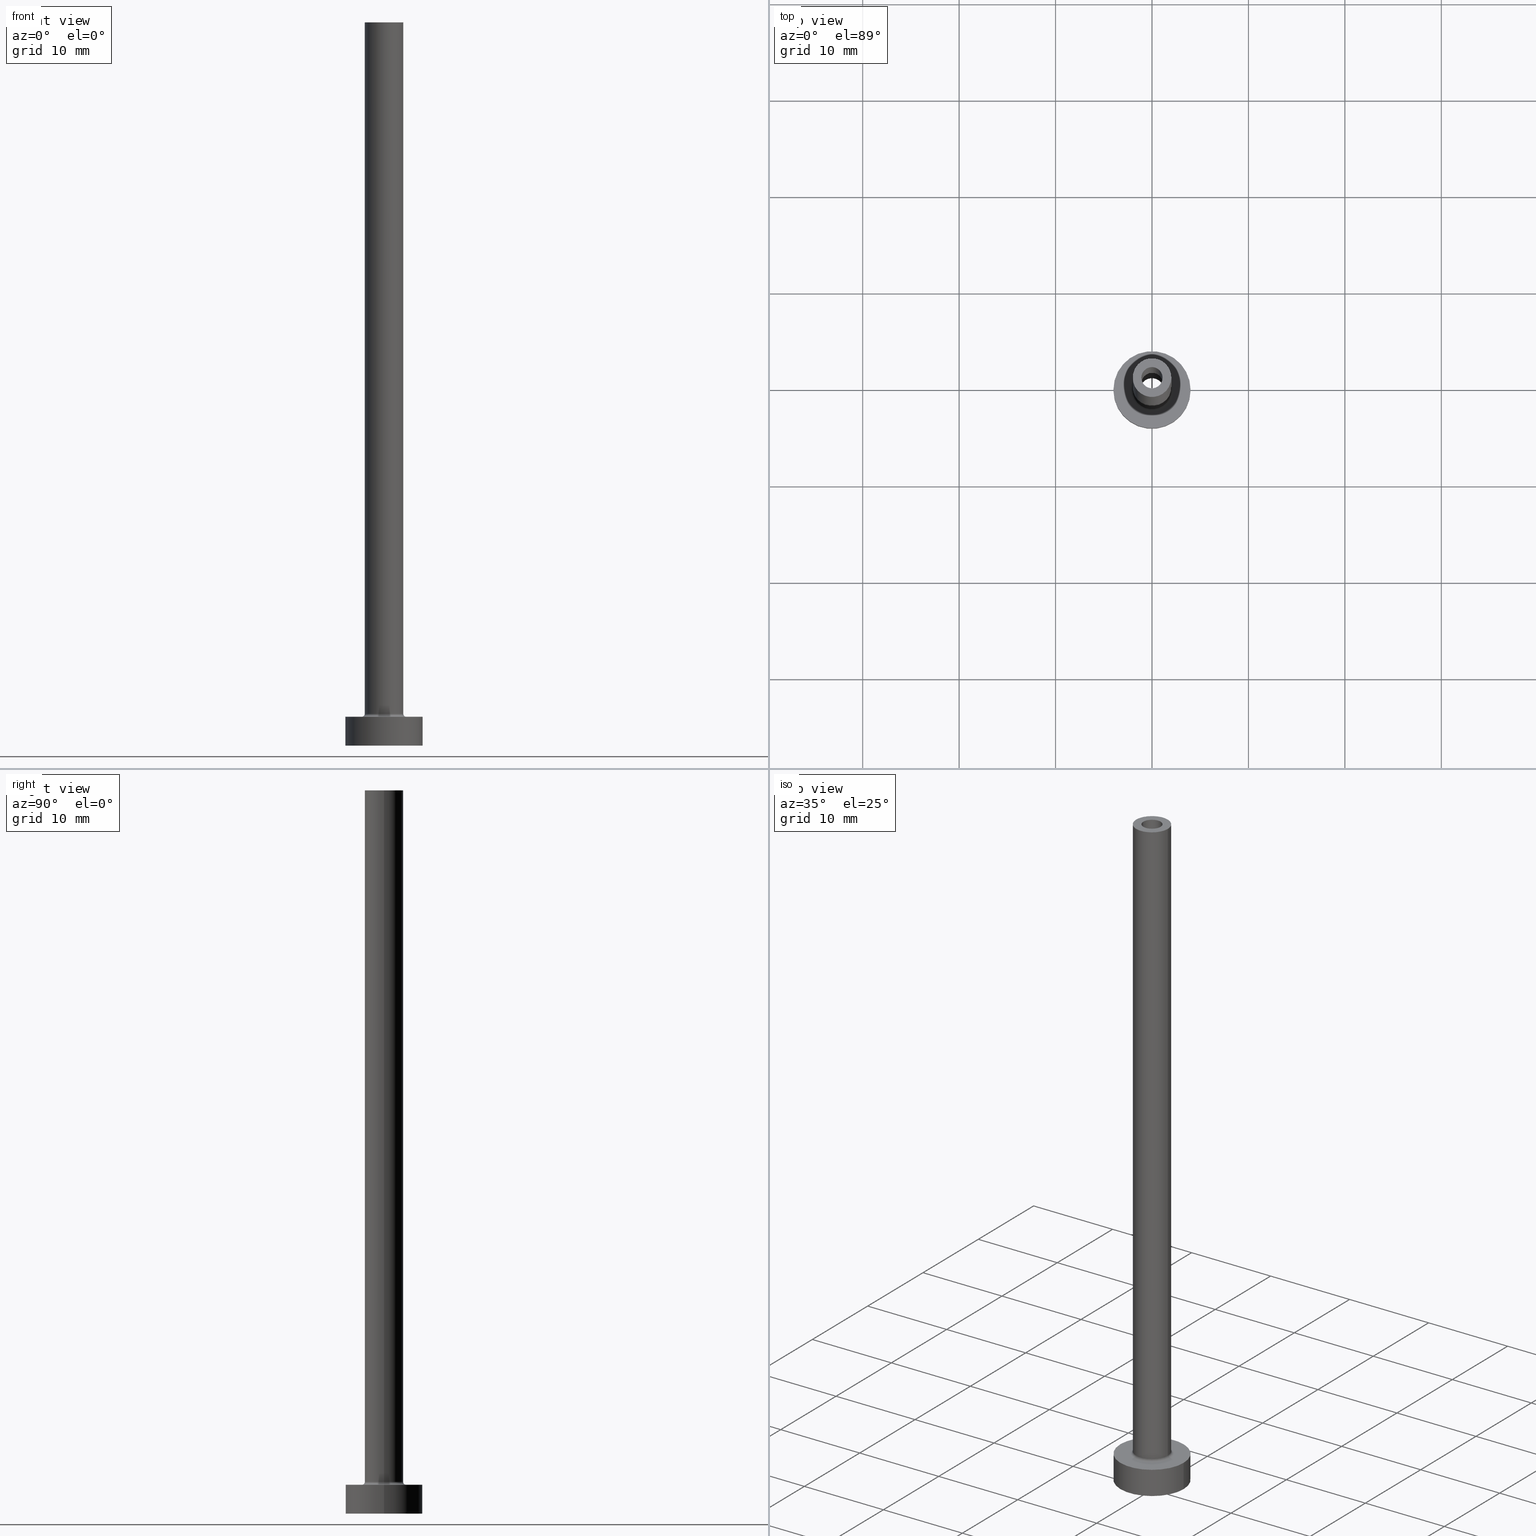
[diagram: canonical four-view strip — front | top / right | iso, engineering-drawing reading convention]
A machine part, canonical four-view strip (front | top / right | iso — engineering-drawing reading convention). The complete STEP part file that produces these views, byte-faithful:
ISO-10303-21;
HEADER;
FILE_DESCRIPTION (( 'STEP AP203' ),
    '1' );
FILE_NAME ('a706.STEP',
    '2023-02-13T12:50:32',
    ( '' ),
    ( '' ),
    'SwSTEP 2.0',
    'SolidWorks 2019',
    '' );
FILE_SCHEMA (( 'CONFIG_CONTROL_DESIGN' ));
ENDSEC;

DATA;
#1 = AXIS2_PLACEMENT_3D ( 'NONE', #374, #343, #160 ) ;
#2 = CYLINDRICAL_SURFACE ( 'NONE', #361, 1.100000000000000089 ) ;
#3 = LINE ( 'NONE', #83, #66 ) ;
#4 = FACE_OUTER_BOUND ( 'NONE', #230, .T. ) ;
#5 = PRODUCT_RELATED_PRODUCT_CATEGORY ( 'detail', '', ( #359 ) ) ;
#6 = DIRECTION ( 'NONE',  ( -0.000000000000000000, -0.000000000000000000, -1.000000000000000000 ) ) ;
#7 = FACE_OUTER_BOUND ( 'NONE', #175, .T. ) ;
#8 = AXIS2_PLACEMENT_3D ( 'NONE', #304, #440, #115 ) ;
#9 = APPROVAL_ROLE ( '' ) ;
#10 = ORIENTED_EDGE ( 'NONE', *, *, #103, .F. ) ;
#11 = DIRECTION ( 'NONE',  ( 0.000000000000000000, 0.000000000000000000, 1.000000000000000000 ) ) ;
#12 = AXIS2_PLACEMENT_3D ( 'NONE', #85, #60, #19 ) ;
#13 = VECTOR ( 'NONE', #367, 1000.000000000000000 ) ;
#14 = CARTESIAN_POINT ( 'NONE',  ( 0.000000000000000000, 0.000000000000000000, 3.299999999999997158 ) ) ;
#15 = COORDINATED_UNIVERSAL_TIME_OFFSET ( 1, 0, .AHEAD. ) ;
#16 = ORIENTED_EDGE ( 'NONE', *, *, #258, .T. ) ;
#17 = DIRECTION ( 'NONE',  ( 0.000000000000000000, 0.000000000000000000, 1.000000000000000000 ) ) ;
#18 = DIRECTION ( 'NONE',  ( 0.000000000000000000, 0.000000000000000000, 1.000000000000000000 ) ) ;
#19 = DIRECTION ( 'NONE',  ( 1.000000000000000000, 0.000000000000000000, 0.000000000000000000 ) ) ;
#20 = CIRCLE ( 'NONE', #101, 2.299999999999999822 ) ;
#21 = FACE_OUTER_BOUND ( 'NONE', #418, .T. ) ;
#22 = VERTEX_POINT ( 'NONE', #294 ) ;
#23 = FACE_BOUND ( 'NONE', #350, .T. ) ;
#24 = VERTEX_POINT ( 'NONE', #461 ) ;
#25 = EDGE_CURVE ( 'NONE', #134, #394, #147, .T. ) ;
#26 = VERTEX_POINT ( 'NONE', #72 ) ;
#27 = TOROIDAL_SURFACE ( 'NONE', #269, 2.299999999999999822, 0.2999999999999999889 ) ;
#28 = EDGE_CURVE ( 'NONE', #446, #59, #432, .T. ) ;
#29 = AXIS2_PLACEMENT_3D ( 'NONE', #426, #395, #358 ) ;
#30 = EDGE_CURVE ( 'NONE', #24, #408, #202, .T. ) ;
#31 = CIRCLE ( 'NONE', #70, 2.000000000000000000 ) ;
#32 = ORIENTED_EDGE ( 'NONE', *, *, #25, .F. ) ;
#33 = EDGE_LOOP ( 'NONE', ( #320, #197, #159, #316 ) ) ;
#34 = CIRCLE ( 'NONE', #274, 4.000000000000000000 ) ;
#35 = ORIENTED_EDGE ( 'NONE', *, *, #444, .T. ) ;
#36 = DATE_TIME_ROLE ( 'classification_date' ) ;
#37 = CLOSED_SHELL ( 'NONE', ( #148, #286, #58, #47, #137, #245, #209, #228, #365, #201, #328, #140, #273, #138 ) ) ;
#38 = DIRECTION ( 'NONE',  ( 1.000000000000000000, 0.000000000000000000, 0.000000000000000000 ) ) ;
#39 = TOROIDAL_SURFACE ( 'NONE', #380, 2.299999999999999822, 0.2999999999999999889 ) ;
#40 = CARTESIAN_POINT ( 'NONE',  ( 0.000000000000000000, 0.000000000000000000, 75.00000000000001421 ) ) ;
#41 = CYLINDRICAL_SURFACE ( 'NONE', #422, 2.000000000000000000 ) ;
#42 = EDGE_CURVE ( 'NONE', #134, #167, #416, .T. ) ;
#43 = PERSON_AND_ORGANIZATION ( #63, #424 ) ;
#44 = DIRECTION ( 'NONE',  ( 0.000000000000000000, 0.000000000000000000, -1.000000000000000000 ) ) ;
#45 = DIRECTION ( 'NONE',  ( 1.224646799147353207E-16, 1.000000000000000000, -0.000000000000000000 ) ) ;
#46 = DIRECTION ( 'NONE',  ( 1.000000000000000000, 0.000000000000000000, 0.000000000000000000 ) ) ;
#47 = ADVANCED_FACE ( 'NONE', ( #224 ), #41, .T. ) ;
#48 = CARTESIAN_POINT ( 'NONE',  ( -2.299999999999999822, 2.816687638038912056E-16, 3.299999999999997158 ) ) ;
#49 = CC_DESIGN_APPROVAL ( #323, ( #355 ) ) ;
#50 = DIRECTION ( 'NONE',  ( -1.000000000000000000, 0.000000000000000000, 0.000000000000000000 ) ) ;
#51 = LINE ( 'NONE', #409, #283 ) ;
#52 = CC_DESIGN_DATE_AND_TIME_ASSIGNMENT ( #251, #392, ( #355 ) ) ;
#53 = FACE_BOUND ( 'NONE', #267, .T. ) ;
#54 = PLANE ( 'NONE',  #65 ) ;
#55 = DIRECTION ( 'NONE',  ( 1.000000000000000000, 0.000000000000000000, -0.000000000000000000 ) ) ;
#56 = CC_DESIGN_APPROVAL ( #312, ( #317 ) ) ;
#57 = ADVANCED_BREP_SHAPE_REPRESENTATION ( 'a706', ( #191, #345 ), #252 ) ;
#58 = ADVANCED_FACE ( 'NONE', ( #184 ), #27, .F. ) ;
#59 = VERTEX_POINT ( 'NONE', #401 ) ;
#60 = DIRECTION ( 'NONE',  ( 0.000000000000000000, 0.000000000000000000, 1.000000000000000000 ) ) ;
#61 = VERTEX_POINT ( 'NONE', #218 ) ;
#62 = ORIENTED_EDGE ( 'NONE', *, *, #436, .F. ) ;
#63 = PERSON ( 'NEUR�EN�', 'NEUR�EN�', 'NEUR�EN�', ('NEUR�EN�'), ('NEUR�EN�'), ('NEUR�EN�') ) ;
#64 = CC_DESIGN_PERSON_AND_ORGANIZATION_ASSIGNMENT ( #212, #354, ( #355 ) ) ;
#65 = AXIS2_PLACEMENT_3D ( 'NONE', #199, #18, #340 ) ;
#66 = VECTOR ( 'NONE', #183, 1000.000000000000000 ) ;
#67 = EDGE_LOOP ( 'NONE', ( #207, #457 ) ) ;
#68 = EDGE_CURVE ( 'NONE', #167, #86, #20, .T. ) ;
#69 = APPROVAL_DATE_TIME ( #391, #323 ) ;
#70 = AXIS2_PLACEMENT_3D ( 'NONE', #342, #257, #46 ) ;
#71 = ORIENTED_EDGE ( 'NONE', *, *, #258, .F. ) ;
#72 = CARTESIAN_POINT ( 'NONE',  ( 2.000000000000000000, 2.449293598294706414E-16, 75.00000000000001421 ) ) ;
#73 = SHAPE_DEFINITION_REPRESENTATION ( #208, #57 ) ;
#74 = DIRECTION ( 'NONE',  ( 1.000000000000000000, 0.000000000000000000, 0.000000000000000000 ) ) ;
#75 = CARTESIAN_POINT ( 'NONE',  ( 0.000000000000000000, 0.000000000000000000, 40.00000000000000711 ) ) ;
#76 = CARTESIAN_POINT ( 'NONE',  ( 0.000000000000000000, 0.000000000000000000, 40.00000000000000711 ) ) ;
#77 = CARTESIAN_POINT ( 'NONE',  ( 0.000000000000000000, 0.000000000000000000, 3.299999999999997158 ) ) ;
#78 = DIRECTION ( 'NONE',  ( 1.000000000000000000, 0.000000000000000000, 0.000000000000000000 ) ) ;
#79 = DIRECTION ( 'NONE',  ( -0.000000000000000000, -0.000000000000000000, -1.000000000000000000 ) ) ;
#80 = DIRECTION ( 'NONE',  ( 0.000000000000000000, 0.000000000000000000, 1.000000000000000000 ) ) ;
#81 = DIRECTION ( 'NONE',  ( 1.000000000000000000, 0.000000000000000000, 0.000000000000000000 ) ) ;
#82 = VERTEX_POINT ( 'NONE', #226 ) ;
#83 = CARTESIAN_POINT ( 'NONE',  ( 1.250000000000000000, 1.530808498934191571E-16, 43.53553390593274486 ) ) ;
#84 = CC_DESIGN_SECURITY_CLASSIFICATION ( #231, ( #317 ) ) ;
#85 = CARTESIAN_POINT ( 'NONE',  ( 0.000000000000000000, 0.000000000000000000, 0.000000000000000000 ) ) ;
#86 = VERTEX_POINT ( 'NONE', #107 ) ;
#87 = FACE_OUTER_BOUND ( 'NONE', #172, .T. ) ;
#88 = ORIENTED_EDGE ( 'NONE', *, *, #103, .T. ) ;
#89 = CARTESIAN_POINT ( 'NONE',  ( 0.000000000000000000, 0.000000000000000000, 0.000000000000000000 ) ) ;
#90 = CARTESIAN_POINT ( 'NONE',  ( 0.000000000000000000, 0.000000000000000000, 0.000000000000000000 ) ) ;
#91 = APPLICATION_CONTEXT ( 'configuration controlled 3d designs of mechanical parts and assemblies' ) ;
#92 = VERTEX_POINT ( 'NONE', #104 ) ;
#93 = DIRECTION ( 'NONE',  ( 0.000000000000000000, 0.000000000000000000, 1.000000000000000000 ) ) ;
#94 = VECTOR ( 'NONE', #306, 1000.000000000000000 ) ;
#95 = ORIENTED_EDGE ( 'NONE', *, *, #315, .T. ) ;
#96 = EDGE_CURVE ( 'NONE', #394, #134, #217, .T. ) ;
#97 = ORIENTED_EDGE ( 'NONE', *, *, #30, .F. ) ;
#98 = ORIENTED_EDGE ( 'NONE', *, *, #419, .T. ) ;
#99 = ORIENTED_EDGE ( 'NONE', *, *, #110, .T. ) ;
#100 = EDGE_CURVE ( 'NONE', #394, #86, #211, .T. ) ;
#101 = AXIS2_PLACEMENT_3D ( 'NONE', #438, #79, #429 ) ;
#102 = APPROVAL_PERSON_ORGANIZATION ( #142, #312, #9 ) ;
#103 = EDGE_CURVE ( 'NONE', #446, #214, #119, .T. ) ;
#104 = CARTESIAN_POINT ( 'NONE',  ( 1.250000000000000000, 1.530808498934191571E-16, 40.00000000000000711 ) ) ;
#105 = PERSON_AND_ORGANIZATION ( #63, #424 ) ;
#106 = DIRECTION ( 'NONE',  ( -0.000000000000000000, -0.000000000000000000, -1.000000000000000000 ) ) ;
#107 = CARTESIAN_POINT ( 'NONE',  ( -2.299999999999999822, 2.816687638038912056E-16, 2.999999999999998668 ) ) ;
#108 = CARTESIAN_POINT ( 'NONE',  ( -1.100000000000000089, 0.000000000000000000, 75.00000000000001421 ) ) ;
#109 = DIRECTION ( 'NONE',  ( 1.000000000000000000, 0.000000000000000000, 0.000000000000000000 ) ) ;
#110 = EDGE_CURVE ( 'NONE', #408, #24, #141, .T. ) ;
#111 = DIRECTION ( 'NONE',  ( -0.000000000000000000, -0.000000000000000000, -1.000000000000000000 ) ) ;
#112 = APPROVAL_STATUS ( 'not_yet_approved' ) ;
#113 = ORIENTED_EDGE ( 'NONE', *, *, #339, .T. ) ;
#114 = DIRECTION ( 'NONE',  ( -0.000000000000000000, -0.000000000000000000, -1.000000000000000000 ) ) ;
#115 = DIRECTION ( 'NONE',  ( 0.000000000000000000, 0.000000000000000000, -1.000000000000000000 ) ) ;
#116 = CC_DESIGN_PERSON_AND_ORGANIZATION_ASSIGNMENT ( #43, #430, ( #317 ) ) ;
#117 = DIRECTION ( 'NONE',  ( 1.000000000000000000, 0.000000000000000000, 0.000000000000000000 ) ) ;
#118 = CYLINDRICAL_SURFACE ( 'NONE', #213, 4.000000000000000000 ) ;
#119 = CIRCLE ( 'NONE', #387, 4.000000000000000000 ) ;
#120 = ORIENTED_EDGE ( 'NONE', *, *, #68, .T. ) ;
#121 = DESIGN_CONTEXT ( 'detailed design', #91, 'design' ) ;
#122 = AXIS2_PLACEMENT_3D ( 'NONE', #158, #93, #443 ) ;
#123 = AXIS2_PLACEMENT_3D ( 'NONE', #40, #338, #298 ) ;
#124 = DIRECTION ( 'NONE',  ( 0.000000000000000000, 0.000000000000000000, -1.000000000000000000 ) ) ;
#125 = ORIENTED_EDGE ( 'NONE', *, *, #288, .T. ) ;
#126 = CARTESIAN_POINT ( 'NONE',  ( 0.000000000000000000, 0.000000000000000000, 3.000000000000000000 ) ) ;
#127 = ORIENTED_EDGE ( 'NONE', *, *, #247, .T. ) ;
#128 = PERSON_AND_ORGANIZATION_ROLE ( 'design_owner' ) ;
#129 = CARTESIAN_POINT ( 'NONE',  ( 1.100000000000000089, 1.347111479062088503E-16, 75.00000000000001421 ) ) ;
#130 = EDGE_LOOP ( 'NONE', ( #352, #32, #366, #347 ) ) ;
#131 = CIRCLE ( 'NONE', #161, 1.250000000000000000 ) ;
#132 = ORIENTED_EDGE ( 'NONE', *, *, #28, .T. ) ;
#133 = CC_DESIGN_PERSON_AND_ORGANIZATION_ASSIGNMENT ( #311, #128, ( #359 ) ) ;
#134 = VERTEX_POINT ( 'NONE', #397 ) ;
#135 = ORIENTED_EDGE ( 'NONE', *, *, #377, .T. ) ;
#136 = VECTOR ( 'NONE', #313, 1000.000000000000000 ) ;
#137 = ADVANCED_FACE ( 'NONE', ( #7 ), #229, .T. ) ;
#138 = ADVANCED_FACE ( 'NONE', ( #4 ), #145, .F. ) ;
#139 = CARTESIAN_POINT ( 'NONE',  ( 0.000000000000000000, 0.000000000000000000, 3.000000000000000000 ) ) ;
#140 = ADVANCED_FACE ( 'NONE', ( #299 ), #290, .F. ) ;
#141 = CIRCLE ( 'NONE', #356, 1.100000000000000089 ) ;
#142 = PERSON_AND_ORGANIZATION ( #63, #424 ) ;
#143 = CARTESIAN_POINT ( 'NONE',  ( 0.000000000000000000, 0.000000000000000000, 40.00000000000000711 ) ) ;
#144 = DIRECTION ( 'NONE',  ( -1.000000000000000000, 0.000000000000000000, 0.000000000000000000 ) ) ;
#145 = CYLINDRICAL_SURFACE ( 'NONE', #435, 1.100000000000000089 ) ;
#146 = CYLINDRICAL_SURFACE ( 'NONE', #239, 1.250000000000000000 ) ;
#147 = CIRCLE ( 'NONE', #351, 2.000000000000000000 ) ;
#148 = ADVANCED_FACE ( 'NONE', ( #327 ), #2, .F. ) ;
#149 = DIRECTION ( 'NONE',  ( 0.000000000000000000, 0.000000000000000000, -1.000000000000000000 ) ) ;
#150 = PERSON_AND_ORGANIZATION_ROLE ( 'classification_officer' ) ;
#151 = CIRCLE ( 'NONE', #12, 4.000000000000000000 ) ;
#152 = ORIENTED_EDGE ( 'NONE', *, *, #456, .F. ) ;
#153 = VECTOR ( 'NONE', #44, 1000.000000000000000 ) ;
#154 = LINE ( 'NONE', #335, #153 ) ;
#155 = DIRECTION ( 'NONE',  ( 1.000000000000000000, 0.000000000000000000, 0.000000000000000000 ) ) ;
#156 = SECURITY_CLASSIFICATION_LEVEL ( 'unclassified' ) ;
#157 = CARTESIAN_POINT ( 'NONE',  ( 0.000000000000000000, 0.000000000000000000, 0.000000000000000000 ) ) ;
#158 = CARTESIAN_POINT ( 'NONE',  ( 0.000000000000000000, 0.000000000000000000, 3.000000000000000000 ) ) ;
#159 = ORIENTED_EDGE ( 'NONE', *, *, #110, .F. ) ;
#160 = DIRECTION ( 'NONE',  ( 1.000000000000000000, 0.000000000000000000, 0.000000000000000000 ) ) ;
#161 = AXIS2_PLACEMENT_3D ( 'NONE', #143, #293, #428 ) ;
#162 = LINE ( 'NONE', #376, #136 ) ;
#163 = ORIENTED_EDGE ( 'NONE', *, *, #68, .F. ) ;
#164 =( LENGTH_UNIT ( ) NAMED_UNIT ( * ) SI_UNIT ( .MILLI., .METRE. ) );
#165 = DIRECTION ( 'NONE',  ( -0.000000000000000000, -0.000000000000000000, -1.000000000000000000 ) ) ;
#166 = ORIENTED_EDGE ( 'NONE', *, *, #433, .F. ) ;
#167 = VERTEX_POINT ( 'NONE', #196 ) ;
#168 = CC_DESIGN_PERSON_AND_ORGANIZATION_ASSIGNMENT ( #105, #150, ( #231 ) ) ;
#169 = LOCAL_TIME ( 13, 50, 32.00000000000000000, #15 ) ;
#170 = ORIENTED_EDGE ( 'NONE', *, *, #96, .F. ) ;
#171 = APPLICATION_PROTOCOL_DEFINITION ( 'international standard', 'config_control_design', 1994, #91 ) ;
#172 = EDGE_LOOP ( 'NONE', ( #152, #385 ) ) ;
#173 = APPROVAL_ROLE ( '' ) ;
#174 = EDGE_CURVE ( 'NONE', #243, #26, #289, .T. ) ;
#175 = EDGE_LOOP ( 'NONE', ( #10, #132, #127, #62 ) ) ;
#176 = CALENDAR_DATE ( 2023, 13, 2 ) ;
#177 = AXIS2_PLACEMENT_3D ( 'NONE', #406, #262, #109 ) ;
#178 = CARTESIAN_POINT ( 'NONE',  ( 0.000000000000000000, 0.000000000000000000, 75.00000000000001421 ) ) ;
#179 = PERSON_AND_ORGANIZATION ( #63, #424 ) ;
#180 = LINE ( 'NONE', #265, #13 ) ;
#181 = CARTESIAN_POINT ( 'NONE',  ( 0.000000000000000000, 0.000000000000000000, 3.000000000000000000 ) ) ;
#182 = APPROVAL_STATUS ( 'not_yet_approved' ) ;
#183 = DIRECTION ( 'NONE',  ( 0.000000000000000000, 0.000000000000000000, -1.000000000000000000 ) ) ;
#184 = FACE_OUTER_BOUND ( 'NONE', #388, .T. ) ;
#185 = APPROVAL ( #112, 'NEUR�EN�' ) ;
#186 = FACE_OUTER_BOUND ( 'NONE', #130, .T. ) ;
#187 = VECTOR ( 'NONE', #111, 1000.000000000000000 ) ;
#188 = DIRECTION ( 'NONE',  ( -1.000000000000000000, 0.000000000000000000, 0.000000000000000000 ) ) ;
#189 = EDGE_LOOP ( 'NONE', ( #415, #423, #284, #334 ) ) ;
#190 = FACE_OUTER_BOUND ( 'NONE', #189, .T. ) ;
#191 = MANIFOLD_SOLID_BREP ( 'Odebrat vysunut�m4', #37 ) ;
#192 = DIRECTION ( 'NONE',  ( 1.000000000000000000, 0.000000000000000000, 0.000000000000000000 ) ) ;
#193 = CARTESIAN_POINT ( 'NONE',  ( -2.000000000000000000, 0.000000000000000000, 3.299999999999997158 ) ) ;
#194 = FACE_OUTER_BOUND ( 'NONE', #272, .T. ) ;
#195 = CARTESIAN_POINT ( 'NONE',  ( 0.000000000000000000, 0.000000000000000000, 75.00000000000001421 ) ) ;
#196 = CARTESIAN_POINT ( 'NONE',  ( 2.299999999999999822, 0.000000000000000000, 2.999999999999998668 ) ) ;
#197 = ORIENTED_EDGE ( 'NONE', *, *, #198, .T. ) ;
#198 = EDGE_CURVE ( 'NONE', #61, #24, #410, .T. ) ;
#199 = CARTESIAN_POINT ( 'NONE',  ( 0.000000000000000000, 0.000000000000000000, 75.00000000000001421 ) ) ;
#200 = ORIENTED_EDGE ( 'NONE', *, *, #28, .F. ) ;
#201 = ADVANCED_FACE ( 'NONE', ( #53, #379 ), #54, .T. ) ;
#202 = CIRCLE ( 'NONE', #177, 1.100000000000000089 ) ;
#203 = EDGE_LOOP ( 'NONE', ( #287, #35, #234, #448 ) ) ;
#204 = AXIS2_PLACEMENT_3D ( 'NONE', #195, #349, #277 ) ;
#205 = LOCAL_TIME ( 13, 50, 32.00000000000000000, #210 ) ;
#206 = EDGE_CURVE ( 'NONE', #353, #61, #326, .T. ) ;
#207 = ORIENTED_EDGE ( 'NONE', *, *, #174, .T. ) ;
#208 = PRODUCT_DEFINITION_SHAPE ( 'NONE', 'NONE',  #355 ) ;
#209 = ADVANCED_FACE ( 'NONE', ( #23, #413 ), #237, .T. ) ;
#210 = COORDINATED_UNIVERSAL_TIME_OFFSET ( 1, 0, .AHEAD. ) ;
#211 = CIRCLE ( 'NONE', #325, 0.2999999999999999334 ) ;
#212 = PERSON_AND_ORGANIZATION ( #63, #424 ) ;
#213 = AXIS2_PLACEMENT_3D ( 'NONE', #126, #235, #382 ) ;
#214 = VERTEX_POINT ( 'NONE', #414 ) ;
#215 = DATE_AND_TIME ( #176, #425 ) ;
#216 = DIRECTION ( 'NONE',  ( 1.000000000000000000, 0.000000000000000000, 0.000000000000000000 ) ) ;
#217 = CIRCLE ( 'NONE', #297, 2.000000000000000000 ) ;
#218 = CARTESIAN_POINT ( 'NONE',  ( 1.100000000000000089, 1.347111479062088503E-16, 75.00000000000001421 ) ) ;
#219 = AXIS2_PLACEMENT_3D ( 'NONE', #344, #308, #192 ) ;
#220 = APPROVAL_PERSON_ORGANIZATION ( #439, #185, #222 ) ;
#221 = EDGE_CURVE ( 'NONE', #26, #134, #162, .T. ) ;
#222 = APPROVAL_ROLE ( '' ) ;
#223 = DIRECTION ( 'NONE',  ( 0.000000000000000000, 0.000000000000000000, -1.000000000000000000 ) ) ;
#224 = FACE_OUTER_BOUND ( 'NONE', #246, .T. ) ;
#225 = CARTESIAN_POINT ( 'NONE',  ( -1.250000000000000000, 0.000000000000000000, 40.00000000000000711 ) ) ;
#226 = CARTESIAN_POINT ( 'NONE',  ( 1.250000000000000000, 1.530808498934191571E-16, 0.000000000000000000 ) ) ;
#227 = PLANE ( 'NONE',  #260 ) ;
#228 = ADVANCED_FACE ( 'NONE', ( #449, #21 ), #279, .F. ) ;
#229 = CYLINDRICAL_SURFACE ( 'NONE', #451, 4.000000000000000000 ) ;
#230 = EDGE_LOOP ( 'NONE', ( #450, #16, #135, #97 ) ) ;
#231 = SECURITY_CLASSIFICATION ( '', '', #156 ) ;
#232 = CARTESIAN_POINT ( 'NONE',  ( 0.000000000000000000, 0.000000000000000000, 3.000000000000000000 ) ) ;
#233 = CARTESIAN_POINT ( 'NONE',  ( -4.000000000000000000, 0.000000000000000000, 0.000000000000000000 ) ) ;
#234 = ORIENTED_EDGE ( 'NONE', *, *, #458, .T. ) ;
#235 = DIRECTION ( 'NONE',  ( -0.000000000000000000, -0.000000000000000000, -1.000000000000000000 ) ) ;
#236 = DIRECTION ( 'NONE',  ( 1.000000000000000000, 0.000000000000000000, 0.000000000000000000 ) ) ;
#237 = PLANE ( 'NONE',  #122 ) ;
#238 = ORIENTED_EDGE ( 'NONE', *, *, #247, .F. ) ;
#239 = AXIS2_PLACEMENT_3D ( 'NONE', #370, #223, #144 ) ;
#240 = DIRECTION ( 'NONE',  ( -1.000000000000000000, 0.000000000000000000, 0.000000000000000000 ) ) ;
#241 = CC_DESIGN_DATE_AND_TIME_ASSIGNMENT ( #215, #36, ( #231 ) ) ;
#242 = ORIENTED_EDGE ( 'NONE', *, *, #30, .T. ) ;
#243 = VERTEX_POINT ( 'NONE', #270 ) ;
#244 = EDGE_CURVE ( 'NONE', #22, #82, #300, .T. ) ;
#245 = ADVANCED_FACE ( 'NONE', ( #194 ), #118, .T. ) ;
#246 = EDGE_LOOP ( 'NONE', ( #166, #381, #285, #346 ) ) ;
#247 = EDGE_CURVE ( 'NONE', #59, #249, #151, .T. ) ;
#248 = AXIS2_PLACEMENT_3D ( 'NONE', #232, #11, #295 ) ;
#249 = VERTEX_POINT ( 'NONE', #233 ) ;
#250 = CALENDAR_DATE ( 2023, 13, 2 ) ;
#251 = DATE_AND_TIME ( #460, #437 ) ;
#252 =( GEOMETRIC_REPRESENTATION_CONTEXT ( 3 ) GLOBAL_UNCERTAINTY_ASSIGNED_CONTEXT ( ( #398 ) ) GLOBAL_UNIT_ASSIGNED_CONTEXT ( ( #164, #348, #386 ) ) REPRESENTATION_CONTEXT ( 'NONE', 'WORKASPACE' ) );
#253 = CARTESIAN_POINT ( 'NONE',  ( 4.000000000000000000, 4.898587196589412829E-16, 3.000000000000000000 ) ) ;
#254 = DATE_AND_TIME ( #292, #291 ) ;
#255 = CARTESIAN_POINT ( 'NONE',  ( 0.000000000000000000, 0.000000000000000000, 40.00000000000000711 ) ) ;
#256 = DIRECTION ( 'NONE',  ( -0.000000000000000000, -0.000000000000000000, -1.000000000000000000 ) ) ;
#257 = DIRECTION ( 'NONE',  ( 0.000000000000000000, 0.000000000000000000, 1.000000000000000000 ) ) ;
#258 = EDGE_CURVE ( 'NONE', #61, #353, #282, .T. ) ;
#259 = DIRECTION ( 'NONE',  ( 0.000000000000000000, 0.000000000000000000, 1.000000000000000000 ) ) ;
#260 = AXIS2_PLACEMENT_3D ( 'NONE', #76, #17, #363 ) ;
#261 = DIRECTION ( 'NONE',  ( 1.000000000000000000, 0.000000000000000000, 0.000000000000000000 ) ) ;
#262 = DIRECTION ( 'NONE',  ( 0.000000000000000000, 0.000000000000000000, 1.000000000000000000 ) ) ;
#263 = COORDINATED_UNIVERSAL_TIME_OFFSET ( 1, 0, .AHEAD. ) ;
#264 = ORIENTED_EDGE ( 'NONE', *, *, #288, .F. ) ;
#265 = CARTESIAN_POINT ( 'NONE',  ( -1.250000000000000000, 0.000000000000000000, 43.53553390593274486 ) ) ;
#266 = DIRECTION ( 'NONE',  ( 0.000000000000000000, 0.000000000000000000, 1.000000000000000000 ) ) ;
#267 = EDGE_LOOP ( 'NONE', ( #278, #71 ) ) ;
#268 = DIRECTION ( 'NONE',  ( 1.000000000000000000, 0.000000000000000000, 0.000000000000000000 ) ) ;
#269 = AXIS2_PLACEMENT_3D ( 'NONE', #77, #259, #371 ) ;
#270 = CARTESIAN_POINT ( 'NONE',  ( -2.000000000000000000, 0.000000000000000000, 75.00000000000001421 ) ) ;
#271 = VECTOR ( 'NONE', #275, 1000.000000000000000 ) ;
#272 = EDGE_LOOP ( 'NONE', ( #200, #420, #455, #125 ) ) ;
#273 = ADVANCED_FACE ( 'NONE', ( #445, #87 ), #227, .F. ) ;
#274 = AXIS2_PLACEMENT_3D ( 'NONE', #157, #80, #117 ) ;
#275 = DIRECTION ( 'NONE',  ( 0.000000000000000000, 0.000000000000000000, -1.000000000000000000 ) ) ;
#276 = APPLICATION_CONTEXT ( 'configuration controlled 3d designs of mechanical parts and assemblies' ) ;
#277 = DIRECTION ( 'NONE',  ( 1.000000000000000000, 0.000000000000000000, 0.000000000000000000 ) ) ;
#278 = ORIENTED_EDGE ( 'NONE', *, *, #206, .F. ) ;
#279 = PLANE ( 'NONE',  #400 ) ;
#280 = CC_DESIGN_PERSON_AND_ORGANIZATION_ASSIGNMENT ( #179, #427, ( #317 ) ) ;
#281 = ORIENTED_EDGE ( 'NONE', *, *, #244, .T. ) ;
#282 = CIRCLE ( 'NONE', #1, 1.100000000000000089 ) ;
#283 = VECTOR ( 'NONE', #114, 1000.000000000000000 ) ;
#284 = ORIENTED_EDGE ( 'NONE', *, *, #404, .T. ) ;
#285 = ORIENTED_EDGE ( 'NONE', *, *, #25, .T. ) ;
#286 = ADVANCED_FACE ( 'NONE', ( #402 ), #146, .F. ) ;
#287 = ORIENTED_EDGE ( 'NONE', *, *, #456, .T. ) ;
#288 = EDGE_CURVE ( 'NONE', #249, #59, #34, .T. ) ;
#289 = CIRCLE ( 'NONE', #204, 2.000000000000000000 ) ;
#290 = CYLINDRICAL_SURFACE ( 'NONE', #29, 1.250000000000000000 ) ;
#291 = LOCAL_TIME ( 13, 50, 32.00000000000000000, #263 ) ;
#292 = CALENDAR_DATE ( 2023, 13, 2 ) ;
#293 = DIRECTION ( 'NONE',  ( 0.000000000000000000, 0.000000000000000000, 1.000000000000000000 ) ) ;
#294 = CARTESIAN_POINT ( 'NONE',  ( -1.250000000000000000, 0.000000000000000000, 0.000000000000000000 ) ) ;
#295 = DIRECTION ( 'NONE',  ( 1.000000000000000000, 0.000000000000000000, 0.000000000000000000 ) ) ;
#296 = DIRECTION ( 'NONE',  ( -0.000000000000000000, -0.000000000000000000, -1.000000000000000000 ) ) ;
#297 = AXIS2_PLACEMENT_3D ( 'NONE', #14, #368, #216 ) ;
#298 = DIRECTION ( 'NONE',  ( -1.000000000000000000, 0.000000000000000000, 0.000000000000000000 ) ) ;
#299 = FACE_OUTER_BOUND ( 'NONE', #305, .T. ) ;
#300 = CIRCLE ( 'NONE', #389, 1.250000000000000000 ) ;
#301 = CIRCLE ( 'NONE', #411, 2.299999999999999822 ) ;
#302 = APPROVAL_DATE_TIME ( #407, #312 ) ;
#303 = DIRECTION ( 'NONE',  ( 0.000000000000000000, 0.000000000000000000, 1.000000000000000000 ) ) ;
#304 = CARTESIAN_POINT ( 'NONE',  ( 2.299999999999999822, 0.000000000000000000, 3.299999999999997158 ) ) ;
#305 = EDGE_LOOP ( 'NONE', ( #383, #95, #98, #281 ) ) ;
#306 = DIRECTION ( 'NONE',  ( -0.000000000000000000, -0.000000000000000000, -1.000000000000000000 ) ) ;
#307 = CARTESIAN_POINT ( 'NONE',  ( 0.000000000000000000, 0.000000000000000000, 75.00000000000001421 ) ) ;
#308 = DIRECTION ( 'NONE',  ( 0.000000000000000000, 0.000000000000000000, 1.000000000000000000 ) ) ;
#309 = APPROVAL_PERSON_ORGANIZATION ( #390, #323, #173 ) ;
#310 = DIRECTION ( 'NONE',  ( 0.000000000000000000, 0.000000000000000000, 1.000000000000000000 ) ) ;
#311 = PERSON_AND_ORGANIZATION ( #63, #424 ) ;
#312 = APPROVAL ( #182, 'NEUR�EN�' ) ;
#313 = DIRECTION ( 'NONE',  ( -0.000000000000000000, -0.000000000000000000, -1.000000000000000000 ) ) ;
#314 = ORIENTED_EDGE ( 'NONE', *, *, #100, .T. ) ;
#315 = EDGE_CURVE ( 'NONE', #92, #341, #452, .T. ) ;
#316 = ORIENTED_EDGE ( 'NONE', *, *, #377, .F. ) ;
#317 = PRODUCT_DEFINITION_FORMATION_WITH_SPECIFIED_SOURCE ( 'LIBOVOLN�', '', #359, .NOT_KNOWN. ) ;
#318 = ORIENTED_EDGE ( 'NONE', *, *, #244, .F. ) ;
#319 = APPROVAL_STATUS ( 'not_yet_approved' ) ;
#320 = ORIENTED_EDGE ( 'NONE', *, *, #206, .T. ) ;
#321 = CIRCLE ( 'NONE', #248, 4.000000000000000000 ) ;
#322 = COORDINATED_UNIVERSAL_TIME_OFFSET ( 1, 0, .AHEAD. ) ;
#323 = APPROVAL ( #319, 'NEUR�EN�' ) ;
#324 = DIRECTION ( 'NONE',  ( -1.000000000000000000, 1.224646799147353207E-16, 0.000000000000000000 ) ) ;
#325 = AXIS2_PLACEMENT_3D ( 'NONE', #48, #45, #324 ) ;
#326 = CIRCLE ( 'NONE', #219, 1.100000000000000089 ) ;
#327 = FACE_OUTER_BOUND ( 'NONE', #33, .T. ) ;
#328 = ADVANCED_FACE ( 'NONE', ( #186 ), #39, .F. ) ;
#329 = DIRECTION ( 'NONE',  ( 0.000000000000000000, 0.000000000000000000, 1.000000000000000000 ) ) ;
#330 = CARTESIAN_POINT ( 'NONE',  ( 0.000000000000000000, 0.000000000000000000, 75.00000000000001421 ) ) ;
#331 = CARTESIAN_POINT ( 'NONE',  ( -4.000000000000000000, 0.000000000000000000, 3.000000000000000000 ) ) ;
#332 = DIRECTION ( 'NONE',  ( 0.000000000000000000, 0.000000000000000000, 1.000000000000000000 ) ) ;
#333 = COORDINATED_UNIVERSAL_TIME_OFFSET ( 1, 0, .AHEAD. ) ;
#334 = ORIENTED_EDGE ( 'NONE', *, *, #96, .T. ) ;
#335 = CARTESIAN_POINT ( 'NONE',  ( -1.100000000000000089, 0.000000000000000000, 75.00000000000001421 ) ) ;
#336 = DIRECTION ( 'NONE',  ( 0.000000000000000000, 0.000000000000000000, 1.000000000000000000 ) ) ;
#337 = AXIS2_PLACEMENT_3D ( 'NONE', #255, #303, #261 ) ;
#338 = DIRECTION ( 'NONE',  ( -0.000000000000000000, -0.000000000000000000, -1.000000000000000000 ) ) ;
#339 = EDGE_CURVE ( 'NONE', #86, #167, #301, .T. ) ;
#340 = DIRECTION ( 'NONE',  ( 1.000000000000000000, 0.000000000000000000, -0.000000000000000000 ) ) ;
#341 = VERTEX_POINT ( 'NONE', #225 ) ;
#342 = CARTESIAN_POINT ( 'NONE',  ( 0.000000000000000000, 0.000000000000000000, 75.00000000000001421 ) ) ;
#343 = DIRECTION ( 'NONE',  ( 0.000000000000000000, 0.000000000000000000, 1.000000000000000000 ) ) ;
#344 = CARTESIAN_POINT ( 'NONE',  ( 0.000000000000000000, 0.000000000000000000, 75.00000000000001421 ) ) ;
#345 = AXIS2_PLACEMENT_3D ( 'NONE', #89, #454, #236 ) ;
#346 = ORIENTED_EDGE ( 'NONE', *, *, #404, .F. ) ;
#347 = ORIENTED_EDGE ( 'NONE', *, *, #339, .F. ) ;
#348 =( NAMED_UNIT ( * ) PLANE_ANGLE_UNIT ( ) SI_UNIT ( $, .RADIAN. ) );
#349 = DIRECTION ( 'NONE',  ( 0.000000000000000000, 0.000000000000000000, 1.000000000000000000 ) ) ;
#350 = EDGE_LOOP ( 'NONE', ( #120, #113 ) ) ;
#351 = AXIS2_PLACEMENT_3D ( 'NONE', #362, #266, #155 ) ;
#352 = ORIENTED_EDGE ( 'NONE', *, *, #100, .F. ) ;
#353 = VERTEX_POINT ( 'NONE', #108 ) ;
#354 = PERSON_AND_ORGANIZATION_ROLE ( 'creator' ) ;
#355 = PRODUCT_DEFINITION ( 'NEZN�M�', '', #317, #121 ) ;
#356 = AXIS2_PLACEMENT_3D ( 'NONE', #75, #332, #38 ) ;
#357 = ORIENTED_EDGE ( 'NONE', *, *, #458, .F. ) ;
#358 = DIRECTION ( 'NONE',  ( -1.000000000000000000, 0.000000000000000000, 0.000000000000000000 ) ) ;
#359 = PRODUCT ( 'a706', 'a706', '', ( #378 ) ) ;
#360 = CARTESIAN_POINT ( 'NONE',  ( 0.000000000000000000, 0.000000000000000000, 3.299999999999997158 ) ) ;
#361 = AXIS2_PLACEMENT_3D ( 'NONE', #307, #124, #240 ) ;
#362 = CARTESIAN_POINT ( 'NONE',  ( 0.000000000000000000, 0.000000000000000000, 3.299999999999997158 ) ) ;
#363 = DIRECTION ( 'NONE',  ( 1.000000000000000000, 0.000000000000000000, -0.000000000000000000 ) ) ;
#364 = ORIENTED_EDGE ( 'NONE', *, *, #42, .F. ) ;
#365 = ADVANCED_FACE ( 'NONE', ( #190 ), #442, .T. ) ;
#366 = ORIENTED_EDGE ( 'NONE', *, *, #42, .T. ) ;
#367 = DIRECTION ( 'NONE',  ( 0.000000000000000000, 0.000000000000000000, -1.000000000000000000 ) ) ;
#368 = DIRECTION ( 'NONE',  ( 0.000000000000000000, 0.000000000000000000, 1.000000000000000000 ) ) ;
#369 = CALENDAR_DATE ( 2023, 13, 2 ) ;
#370 = CARTESIAN_POINT ( 'NONE',  ( 0.000000000000000000, 0.000000000000000000, 43.53553390593274486 ) ) ;
#371 = DIRECTION ( 'NONE',  ( 1.000000000000000000, 0.000000000000000000, 0.000000000000000000 ) ) ;
#372 = AXIS2_PLACEMENT_3D ( 'NONE', #434, #106, #74 ) ;
#373 = CARTESIAN_POINT ( 'NONE',  ( -1.100000000000000089, 0.000000000000000000, 40.00000000000000711 ) ) ;
#374 = CARTESIAN_POINT ( 'NONE',  ( 0.000000000000000000, 0.000000000000000000, 75.00000000000001421 ) ) ;
#375 = APPLICATION_PROTOCOL_DEFINITION ( 'international standard', 'config_control_design', 1994, #276 ) ;
#376 = CARTESIAN_POINT ( 'NONE',  ( 2.000000000000000000, 2.449293598294706414E-16, 75.00000000000001421 ) ) ;
#377 = EDGE_CURVE ( 'NONE', #353, #408, #154, .T. ) ;
#378 = MECHANICAL_CONTEXT ( 'NONE', #276, 'mechanical' ) ;
#379 = FACE_OUTER_BOUND ( 'NONE', #67, .T. ) ;
#380 = AXIS2_PLACEMENT_3D ( 'NONE', #360, #329, #78 ) ;
#381 = ORIENTED_EDGE ( 'NONE', *, *, #221, .T. ) ;
#382 = DIRECTION ( 'NONE',  ( -1.000000000000000000, 0.000000000000000000, 0.000000000000000000 ) ) ;
#383 = ORIENTED_EDGE ( 'NONE', *, *, #444, .F. ) ;
#384 = EDGE_CURVE ( 'NONE', #214, #446, #321, .T. ) ;
#385 = ORIENTED_EDGE ( 'NONE', *, *, #315, .F. ) ;
#386 =( NAMED_UNIT ( * ) SI_UNIT ( $, .STERADIAN. ) SOLID_ANGLE_UNIT ( ) );
#387 = AXIS2_PLACEMENT_3D ( 'NONE', #139, #336, #81 ) ;
#388 = EDGE_LOOP ( 'NONE', ( #170, #314, #163, #364 ) ) ;
#389 = AXIS2_PLACEMENT_3D ( 'NONE', #417, #165, #447 ) ;
#390 = PERSON_AND_ORGANIZATION ( #63, #424 ) ;
#391 = DATE_AND_TIME ( #250, #205 ) ;
#392 = DATE_TIME_ROLE ( 'creation_date' ) ;
#393 = CIRCLE ( 'NONE', #372, 1.250000000000000000 ) ;
#394 = VERTEX_POINT ( 'NONE', #193 ) ;
#395 = DIRECTION ( 'NONE',  ( 0.000000000000000000, 0.000000000000000000, -1.000000000000000000 ) ) ;
#396 = CARTESIAN_POINT ( 'NONE',  ( 0.000000000000000000, 0.000000000000000000, 3.000000000000000000 ) ) ;
#397 = CARTESIAN_POINT ( 'NONE',  ( 2.000000000000000000, 2.449293598294706414E-16, 3.299999999999997158 ) ) ;
#398 = UNCERTAINTY_MEASURE_WITH_UNIT (LENGTH_MEASURE( 1.000000000000000082E-05 ), #164, 'distance_accuracy_value', 'NONE');
#399 = CARTESIAN_POINT ( 'NONE',  ( 4.000000000000000000, 4.898587196589412829E-16, 3.000000000000000000 ) ) ;
#400 = AXIS2_PLACEMENT_3D ( 'NONE', #90, #310, #55 ) ;
#401 = CARTESIAN_POINT ( 'NONE',  ( 4.000000000000000000, 4.898587196589412829E-16, 0.000000000000000000 ) ) ;
#402 = FACE_OUTER_BOUND ( 'NONE', #203, .T. ) ;
#403 = DIRECTION ( 'NONE',  ( -1.000000000000000000, 0.000000000000000000, 0.000000000000000000 ) ) ;
#404 = EDGE_CURVE ( 'NONE', #243, #394, #51, .T. ) ;
#405 = APPROVAL_DATE_TIME ( #254, #185 ) ;
#406 = CARTESIAN_POINT ( 'NONE',  ( 0.000000000000000000, 0.000000000000000000, 40.00000000000000711 ) ) ;
#407 = DATE_AND_TIME ( #369, #169 ) ;
#408 = VERTEX_POINT ( 'NONE', #373 ) ;
#409 = CARTESIAN_POINT ( 'NONE',  ( -2.000000000000000000, 0.000000000000000000, 75.00000000000001421 ) ) ;
#410 = LINE ( 'NONE', #129, #271 ) ;
#411 = AXIS2_PLACEMENT_3D ( 'NONE', #396, #6, #268 ) ;
#412 = EDGE_LOOP ( 'NONE', ( #99, #242 ) ) ;
#413 = FACE_OUTER_BOUND ( 'NONE', #453, .T. ) ;
#414 = CARTESIAN_POINT ( 'NONE',  ( -4.000000000000000000, 0.000000000000000000, 3.000000000000000000 ) ) ;
#415 = ORIENTED_EDGE ( 'NONE', *, *, #221, .F. ) ;
#416 = CIRCLE ( 'NONE', #8, 0.2999999999999999334 ) ;
#417 = CARTESIAN_POINT ( 'NONE',  ( 0.000000000000000000, 0.000000000000000000, 0.000000000000000000 ) ) ;
#418 = EDGE_LOOP ( 'NONE', ( #264, #238 ) ) ;
#419 = EDGE_CURVE ( 'NONE', #341, #22, #180, .T. ) ;
#420 = ORIENTED_EDGE ( 'NONE', *, *, #384, .F. ) ;
#421 = EDGE_LOOP ( 'NONE', ( #318, #357 ) ) ;
#422 = AXIS2_PLACEMENT_3D ( 'NONE', #330, #256, #403 ) ;
#423 = ORIENTED_EDGE ( 'NONE', *, *, #174, .F. ) ;
#424 = ORGANIZATION ( 'NEUR�EN�', 'NEUR�EN�', '' ) ;
#425 = LOCAL_TIME ( 13, 50, 32.00000000000000000, #333 ) ;
#426 = CARTESIAN_POINT ( 'NONE',  ( 0.000000000000000000, 0.000000000000000000, 43.53553390593274486 ) ) ;
#427 = PERSON_AND_ORGANIZATION_ROLE ( 'design_supplier' ) ;
#428 = DIRECTION ( 'NONE',  ( 1.000000000000000000, 0.000000000000000000, 0.000000000000000000 ) ) ;
#429 = DIRECTION ( 'NONE',  ( 1.000000000000000000, 0.000000000000000000, 0.000000000000000000 ) ) ;
#430 = PERSON_AND_ORGANIZATION_ROLE ( 'creator' ) ;
#431 = LINE ( 'NONE', #331, #94 ) ;
#432 = LINE ( 'NONE', #253, #187 ) ;
#433 = EDGE_CURVE ( 'NONE', #26, #243, #31, .T. ) ;
#434 = CARTESIAN_POINT ( 'NONE',  ( 0.000000000000000000, 0.000000000000000000, 0.000000000000000000 ) ) ;
#435 = AXIS2_PLACEMENT_3D ( 'NONE', #178, #149, #50 ) ;
#436 = EDGE_CURVE ( 'NONE', #214, #249, #431, .T. ) ;
#437 = LOCAL_TIME ( 13, 50, 32.00000000000000000, #322 ) ;
#438 = CARTESIAN_POINT ( 'NONE',  ( 0.000000000000000000, 0.000000000000000000, 3.000000000000000000 ) ) ;
#439 = PERSON_AND_ORGANIZATION ( #63, #424 ) ;
#440 = DIRECTION ( 'NONE',  ( 0.000000000000000000, -1.000000000000000000, 0.000000000000000000 ) ) ;
#441 = ORIENTED_EDGE ( 'NONE', *, *, #384, .T. ) ;
#442 = CYLINDRICAL_SURFACE ( 'NONE', #123, 2.000000000000000000 ) ;
#443 = DIRECTION ( 'NONE',  ( 1.000000000000000000, 0.000000000000000000, -0.000000000000000000 ) ) ;
#444 = EDGE_CURVE ( 'NONE', #92, #82, #3, .T. ) ;
#445 = FACE_BOUND ( 'NONE', #412, .T. ) ;
#446 = VERTEX_POINT ( 'NONE', #399 ) ;
#447 = DIRECTION ( 'NONE',  ( 1.000000000000000000, 0.000000000000000000, 0.000000000000000000 ) ) ;
#448 = ORIENTED_EDGE ( 'NONE', *, *, #419, .F. ) ;
#449 = FACE_BOUND ( 'NONE', #421, .T. ) ;
#450 = ORIENTED_EDGE ( 'NONE', *, *, #198, .F. ) ;
#451 = AXIS2_PLACEMENT_3D ( 'NONE', #181, #296, #188 ) ;
#452 = CIRCLE ( 'NONE', #337, 1.250000000000000000 ) ;
#453 = EDGE_LOOP ( 'NONE', ( #441, #88 ) ) ;
#454 = DIRECTION ( 'NONE',  ( 0.000000000000000000, 0.000000000000000000, 1.000000000000000000 ) ) ;
#455 = ORIENTED_EDGE ( 'NONE', *, *, #436, .T. ) ;
#456 = EDGE_CURVE ( 'NONE', #341, #92, #131, .T. ) ;
#457 = ORIENTED_EDGE ( 'NONE', *, *, #433, .T. ) ;
#458 = EDGE_CURVE ( 'NONE', #82, #22, #393, .T. ) ;
#459 = CC_DESIGN_APPROVAL ( #185, ( #231 ) ) ;
#460 = CALENDAR_DATE ( 2023, 13, 2 ) ;
#461 = CARTESIAN_POINT ( 'NONE',  ( 1.100000000000000089, 1.347111479062088503E-16, 40.00000000000000711 ) ) ;
ENDSEC;
END-ISO-10303-21;
